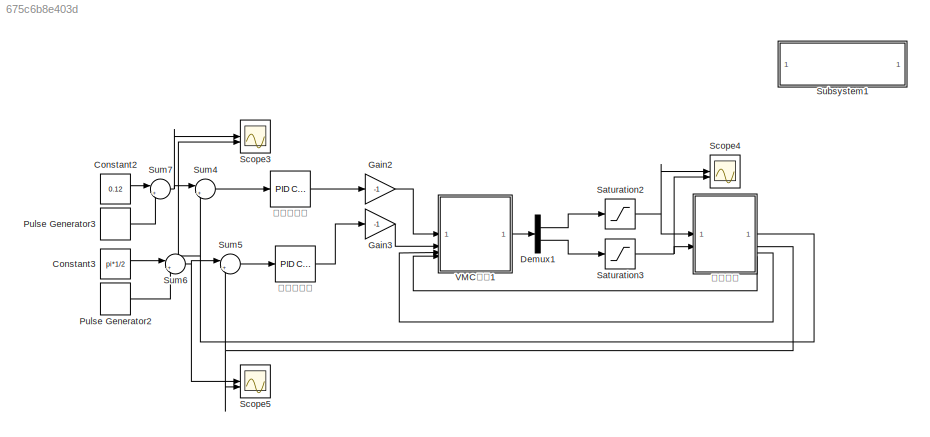
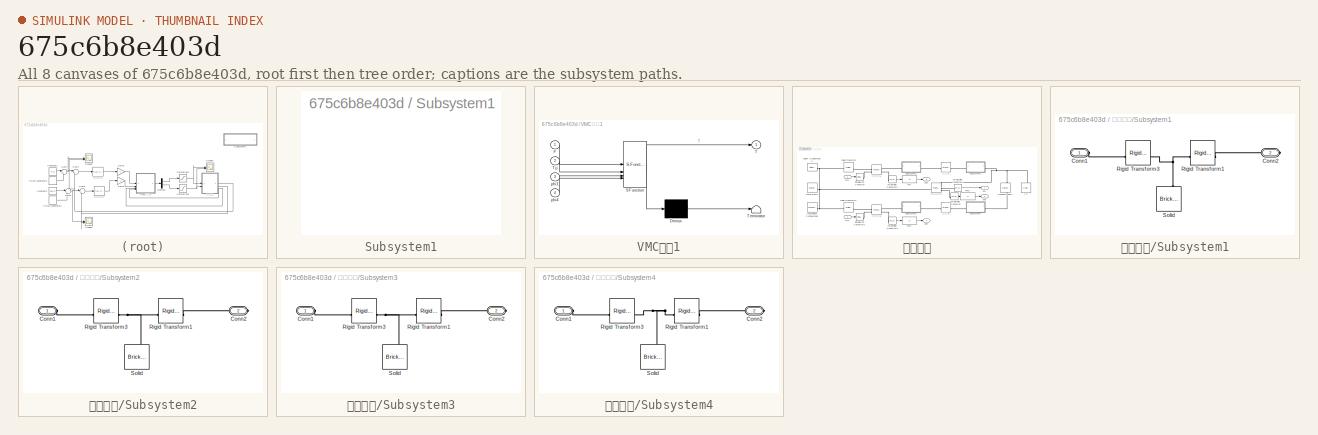
[diagram: thumbnail index - all 8 canvases of the model, root first then tree order]
MODEL slx_675c6b8e403d
KIND model
CONFIG AbsTol = auto
CONFIG EnableMultiTasking = off
CONFIG FixedStep = auto
CONFIG MaxStep = auto
CONFIG MinStep = auto
CONFIG RelTol = 1e-3
CONFIG SampleTimeConstraint = Unconstrained
CONFIG SolverName = VariableStepAuto
CONFIG StartTime = 0.0
CONFIG StopTime = 10.0
BLOCK [Constant] Constant2
  Value = 0.12
BLOCK [Constant] Constant3
  Value = pi*1/2
BLOCK [Demux] Demux1
  Outputs = 2
BLOCK [Gain] Gain2
  Gain = -1
BLOCK [Gain] Gain3
  Gain = -1
BLOCK [DiscretePulseGenerator] Pulse Generator2
  Amplitude = 0
  PulseType = Time based
  PulseWidth = 50
BLOCK [DiscretePulseGenerator] Pulse Generator3
  Amplitude = 0.205
  PulseType = Time based
  PulseWidth = 50
BLOCK [Saturate] Saturation2
  LowerLimit = -1.5
  UpperLimit = 1.5
BLOCK [Saturate] Saturation3
  LowerLimit = -1.5
  UpperLimit = 1.5
BLOCK [Scope] Scope3
  Floating = off
  NumInputPorts = 2
  ScopeSpecificationString = Simulink.scopes.TimeScopeBlockCfg('CurrentConfiguration', extmgr.ConfigurationSet(extmgr.Configuration('Core','General UI',true,'FigureColor',[1 1 1]),extmgr.Configuration('Core','Source UI',true),extmgr.Configuration('Sources','WiredSimulink',true,'DataLoggingVariableName','ScopeData1'),extmgr.Configuration('Visuals','Time Domain',true,'SerializedDisplays',{struct('MinYLimReal','0.09392','MaxYLim...<+1647ch>
BLOCK [Scope] Scope4
  Floating = off
  NumInputPorts = 2
  ScopeSpecificationString = Simulink.scopes.TimeScopeBlockCfg('CurrentConfiguration', extmgr.ConfigurationSet(extmgr.Configuration('Core','General UI',true),extmgr.Configuration('Core','Source UI',true),extmgr.Configuration('Sources','WiredSimulink',true,'DataLoggingVariableName','ScopeData2'),extmgr.Configuration('Visuals','Time Domain',true,'SerializedDisplays',{struct('MinYLimReal','-1.875','MaxYLimReal','1.875','YLabelRe...<+1427ch>
BLOCK [Scope] Scope5
  Floating = off
  NumInputPorts = 2
  ScopeSpecificationString = Simulink.scopes.TimeScopeBlockCfg('CurrentConfiguration', extmgr.ConfigurationSet(extmgr.Configuration('Core','General UI',true,'FigureColor',[1 1 1]),extmgr.Configuration('Core','Source UI',true),extmgr.Configuration('Sources','WiredSimulink',true,'DataLoggingVariableName','ScopeData3'),extmgr.Configuration('Visuals','Time Domain',true,'SerializedDisplays',{struct('MinYLimReal','0.31839','MaxYLim...<+1698ch>
BLOCK [SubSystem] Subsystem1
  OpenFcn = open_system('sm_lib')
  ShowPortLabels = none
BLOCK [Sum] Sum4
  Inputs = |+-
BLOCK [Sum] Sum5
  Inputs = |+-
BLOCK [Sum] Sum6
  Inputs = |++
BLOCK [Sum] Sum7
  Inputs = |++
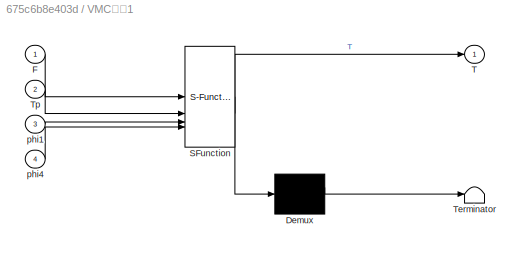
BLOCK [SubSystem] VMC解算1
  ErrorFcn = Stateflow.Translate.translate
  PermitHierarchicalResolution = ExplicitOnly
  SFBlockType = MATLAB Function
  TreatAsAtomicUnit = on
BLOCK [Demux] VMC解算1/ Demux 
  Outputs = 1
BLOCK [S-Function] VMC解算1/ SFunction 
  EnableBusSupport = on
  FunctionName = sf_sfun
  PortCounts = [4 2]
  SFcnIsStateOwnerBlock = off
  SFunctionDeploymentMode = off
  Tag = Stateflow S-Function 1
BLOCK [Terminator] VMC解算1/ Terminator 
BLOCK [Inport] VMC解算1/F
BLOCK [Outport] VMC解算1/T
  VectorParamsAs1DForOutWhenUnconnected = off
BLOCK [Inport] VMC解算1/Tp
  Port = 2
BLOCK [Inport] VMC解算1/phi1
  Port = 3
BLOCK [Inport] VMC解算1/phi4
  Port = 4
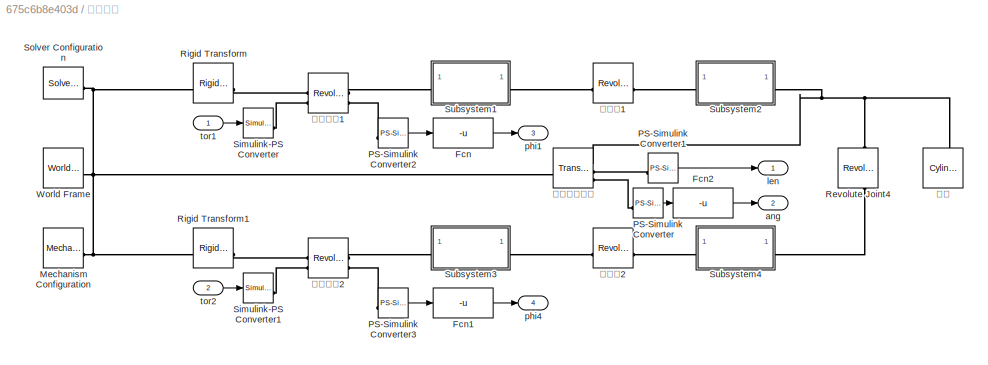
BLOCK [SubSystem] 物理模型
BLOCK [Fcn] 物理模型/Fcn
  Expr = -u
BLOCK [Fcn] 物理模型/Fcn1
  Expr = -u
BLOCK [Fcn] 物理模型/Fcn2
  Expr = -u
BLOCK [Reference] 物理模型/Mechanism Configuration  REF=sm_lib/Utilities/Mechanism
Configuration
  SourceBlock = sm_lib/Utilities/Mechanism\nConfiguration
  SourceType = Mechanism\nConfiguration
BLOCK [Reference] 物理模型/PS-Simulink Converter  REF=nesl_utility/PS-Simulink
Converter
  SourceBlock = nesl_utility/PS-Simulink\nConverter
  SourceType = PS-Simulink\nConverter
BLOCK [Reference] 物理模型/PS-Simulink Converter1  REF=nesl_utility/PS-Simulink
Converter
  SourceBlock = nesl_utility/PS-Simulink\nConverter
  SourceType = PS-Simulink\nConverter
BLOCK [Reference] 物理模型/PS-Simulink Converter2  REF=nesl_utility/PS-Simulink
Converter
  SourceBlock = nesl_utility/PS-Simulink\nConverter
  SourceType = PS-Simulink\nConverter
BLOCK [Reference] 物理模型/PS-Simulink Converter3  REF=nesl_utility/PS-Simulink
Converter
  SourceBlock = nesl_utility/PS-Simulink\nConverter
  SourceType = PS-Simulink\nConverter
BLOCK [Reference] 物理模型/Revolute Joint4  REF=sm_lib/Joints/Revolute Joint
  NameLocation = right
  SourceBlock = sm_lib/Joints/Revolute Joint
  SourceType = Revolute Joint
BLOCK [Reference] 物理模型/Rigid Transform  REF=sm_lib/Frames and
Transforms/Rigid
Transform
  SourceBlock = sm_lib/Frames and\nTransforms/Rigid\nTransform
  SourceType = Rigid\nTransform
BLOCK [Reference] 物理模型/Rigid Transform1  REF=sm_lib/Frames and
Transforms/Rigid
Transform
  SourceBlock = sm_lib/Frames and\nTransforms/Rigid\nTransform
  SourceType = Rigid\nTransform
BLOCK [Reference] 物理模型/Simulink-PS Converter  REF=nesl_utility/Simulink-PS
Converter
  SourceBlock = nesl_utility/Simulink-PS\nConverter
  SourceType = Simulink-PS\nConverter
BLOCK [Reference] 物理模型/Simulink-PS Converter1  REF=nesl_utility/Simulink-PS
Converter
  SourceBlock = nesl_utility/Simulink-PS\nConverter
  SourceType = Simulink-PS\nConverter
BLOCK [Reference] 物理模型/Solver Configuration  REF=nesl_utility/Solver
Configuration
  SourceBlock = nesl_utility/Solver\nConfiguration
  SourceType = Solver\nConfiguration
BLOCK [SubSystem] 物理模型/Subsystem1
BLOCK [PMIOPort] 物理模型/Subsystem1/Conn1
  Side = Left
BLOCK [PMIOPort] 物理模型/Subsystem1/Conn2
  Port = 2
  Side = Right
BLOCK [Reference] 物理模型/Subsystem1/Rigid Transform1  REF=sm_lib/Frames and
Transforms/Rigid
Transform
  SourceBlock = sm_lib/Frames and\nTransforms/Rigid\nTransform
  SourceType = Rigid\nTransform
BLOCK [Reference] 物理模型/Subsystem1/Rigid Transform3  REF=sm_lib/Frames and
Transforms/Rigid
Transform
  SourceBlock = sm_lib/Frames and\nTransforms/Rigid\nTransform
  SourceType = Rigid\nTransform
BLOCK [Reference] 物理模型/Subsystem1/Solid  REF=sm_lib/Body Elements/Brick Solid
  NameLocation = right
  SourceBlock = sm_lib/Body Elements/Brick Solid
  SourceType = Brick Solid
BLOCK [SubSystem] 物理模型/Subsystem2
BLOCK [PMIOPort] 物理模型/Subsystem2/Conn1
  Side = Left
BLOCK [PMIOPort] 物理模型/Subsystem2/Conn2
  Port = 2
  Side = Right
BLOCK [Reference] 物理模型/Subsystem2/Rigid Transform1  REF=sm_lib/Frames and
Transforms/Rigid
Transform
  SourceBlock = sm_lib/Frames and\nTransforms/Rigid\nTransform
  SourceType = Rigid\nTransform
BLOCK [Reference] 物理模型/Subsystem2/Rigid Transform3  REF=sm_lib/Frames and
Transforms/Rigid
Transform
  SourceBlock = sm_lib/Frames and\nTransforms/Rigid\nTransform
  SourceType = Rigid\nTransform
BLOCK [Reference] 物理模型/Subsystem2/Solid  REF=sm_lib/Body Elements/Brick Solid
  NameLocation = right
  SourceBlock = sm_lib/Body Elements/Brick Solid
  SourceType = Brick Solid
BLOCK [SubSystem] 物理模型/Subsystem3
BLOCK [PMIOPort] 物理模型/Subsystem3/Conn1
  Side = Left
BLOCK [PMIOPort] 物理模型/Subsystem3/Conn2
  Port = 2
  Side = Right
BLOCK [Reference] 物理模型/Subsystem3/Rigid Transform1  REF=sm_lib/Frames and
Transforms/Rigid
Transform
  SourceBlock = sm_lib/Frames and\nTransforms/Rigid\nTransform
  SourceType = Rigid\nTransform
BLOCK [Reference] 物理模型/Subsystem3/Rigid Transform3  REF=sm_lib/Frames and
Transforms/Rigid
Transform
  SourceBlock = sm_lib/Frames and\nTransforms/Rigid\nTransform
  SourceType = Rigid\nTransform
BLOCK [Reference] 物理模型/Subsystem3/Solid  REF=sm_lib/Body Elements/Brick Solid
  NameLocation = right
  SourceBlock = sm_lib/Body Elements/Brick Solid
  SourceType = Brick Solid
BLOCK [SubSystem] 物理模型/Subsystem4
BLOCK [PMIOPort] 物理模型/Subsystem4/Conn1
  Side = Left
BLOCK [PMIOPort] 物理模型/Subsystem4/Conn2
  Port = 2
  Side = Right
BLOCK [Reference] 物理模型/Subsystem4/Rigid Transform1  REF=sm_lib/Frames and
Transforms/Rigid
Transform
  SourceBlock = sm_lib/Frames and\nTransforms/Rigid\nTransform
  SourceType = Rigid\nTransform
BLOCK [Reference] 物理模型/Subsystem4/Rigid Transform3  REF=sm_lib/Frames and
Transforms/Rigid
Transform
  SourceBlock = sm_lib/Frames and\nTransforms/Rigid\nTransform
  SourceType = Rigid\nTransform
BLOCK [Reference] 物理模型/Subsystem4/Solid  REF=sm_lib/Body Elements/Brick Solid
  NameLocation = right
  SourceBlock = sm_lib/Body Elements/Brick Solid
  SourceType = Brick Solid
BLOCK [Reference] 物理模型/World Frame  REF=sm_lib/Frames and
Transforms/World Frame
  SourceBlock = sm_lib/Frames and\nTransforms/World Frame
  SourceType = World Frame
BLOCK [Outport] 物理模型/ang
  Port = 2
  VectorParamsAs1DForOutWhenUnconnected = off
BLOCK [Outport] 物理模型/len
  VectorParamsAs1DForOutWhenUnconnected = off
BLOCK [Outport] 物理模型/phi1
  Port = 3
  VectorParamsAs1DForOutWhenUnconnected = off
BLOCK [Outport] 物理模型/phi4
  Port = 4
  VectorParamsAs1DForOutWhenUnconnected = off
BLOCK [Inport] 物理模型/tor1
BLOCK [Inport] 物理模型/tor2
  Port = 2
BLOCK [Reference] 物理模型/关节电机1  REF=sm_lib/Joints/Revolute Joint
  SourceBlock = sm_lib/Joints/Revolute Joint
  SourceType = Revolute Joint
BLOCK [Reference] 物理模型/关节电机2  REF=sm_lib/Joints/Revolute Joint
  SourceBlock = sm_lib/Joints/Revolute Joint
  SourceType = Revolute Joint
BLOCK [Reference] 物理模型/膝关节1  REF=sm_lib/Joints/Revolute Joint
  SourceBlock = sm_lib/Joints/Revolute Joint
  SourceType = Revolute Joint
BLOCK [Reference] 物理模型/膝关节2  REF=sm_lib/Joints/Revolute Joint
  SourceBlock = sm_lib/Joints/Revolute Joint
  SourceType = Revolute Joint
BLOCK [Reference] 物理模型/虚拟腿传感器  REF=sm_lib/Frames and
Transforms/Transform
Sensor
  SourceBlock = sm_lib/Frames and\nTransforms/Transform\nSensor
  SourceType = Transform\nSensor
BLOCK [Reference] 物理模型/车轮  REF=sm_lib/Body Elements/Cylindrical Solid
  SourceBlock = sm_lib/Body Elements/Cylindrical Solid
  SourceType = Cylindrical Solid
BLOCK [Reference] 腿长控制器  REF=slpidlib/PID Controller
  SourceBlock = slpidlib/PID Controller
  SourceType = PID 1dof
BLOCK [Reference] 角度控制器  REF=slpidlib/PID Controller
  SourceBlock = slpidlib/PID Controller
  SourceType = PID 1dof
LINE Constant2:1 -> Sum7:1
LINE Constant3:1 -> Sum6:1
LINE Demux1:1 -> Saturation2:1
LINE Demux1:2 -> Saturation3:1
LINE Gain2:1 -> VMC解算1:1
LINE Gain3:1 -> VMC解算1:2
LINE Pulse Generator2:1 -> Sum6:2
LINE Pulse Generator3:1 -> Sum7:2
NET Saturation2:1 -> Scope4:1, 物理模型:1
NET Saturation3:1 -> Scope4:2, 物理模型:2
LINE Sum4:1 -> 腿长控制器:1
LINE Sum5:1 -> 角度控制器:1
NET Sum6:1 -> Scope5:1, Sum5:1
NET Sum7:1 -> Scope3:1, Sum4:1
LINE VMC解算1:1 -> Demux1:1
LINE 物理模型/Fcn1:1 -> 物理模型/phi4:1
LINE 物理模型/Fcn2:1 -> 物理模型/ang:1
LINE 物理模型/Fcn:1 -> 物理模型/phi1:1
LINE 物理模型/PS-Simulink Converter1:1 -> 物理模型/len:1
LINE 物理模型/PS-Simulink Converter2:1 -> 物理模型/Fcn:1
LINE 物理模型/PS-Simulink Converter3:1 -> 物理模型/Fcn1:1
LINE 物理模型/PS-Simulink Converter:1 -> 物理模型/Fcn2:1
LINE 物理模型/tor1:1 -> 物理模型/Simulink-PS Converter:1
LINE 物理模型/tor2:1 -> 物理模型/Simulink-PS Converter1:1
NET 物理模型:1 -> Scope3:2, Sum4:2
NET 物理模型:2 -> Scope5:2, Sum5:2
LINE 物理模型:3 -> VMC解算1:3
LINE 物理模型:4 -> VMC解算1:4
LINE 腿长控制器:1 -> Gain2:1
LINE 角度控制器:1 -> Gain3:1
PNET net1: 物理模型/Mechanism Configuration:RConn1 -- 物理模型/Rigid Transform1:LConn1 -- 物理模型/Rigid Transform:LConn1 -- 物理模型/Solver Configuration:RConn1 -- 物理模型/World Frame:RConn1 -- 物理模型/虚拟腿传感器:LConn1
PLINE 物理模型/PS-Simulink Converter1:LConn1 -- 物理模型/虚拟腿传感器:RConn2
PLINE 物理模型/PS-Simulink Converter2:LConn1 -- 物理模型/关节电机1:RConn2
PLINE 物理模型/PS-Simulink Converter3:LConn1 -- 物理模型/关节电机2:RConn2
PLINE 物理模型/PS-Simulink Converter:LConn1 -- 物理模型/虚拟腿传感器:RConn3
PLINE 物理模型/Revolute Joint4:LConn1 -- 物理模型/Subsystem4:RConn1
PNET net2: 物理模型/Revolute Joint4:RConn1 -- 物理模型/Subsystem2:RConn1 -- 物理模型/虚拟腿传感器:RConn1 -- 物理模型/车轮:RConn1
PLINE 物理模型/Rigid Transform1:RConn1 -- 物理模型/关节电机2:LConn1
PLINE 物理模型/Rigid Transform:RConn1 -- 物理模型/关节电机1:LConn1
PLINE 物理模型/Simulink-PS Converter1:RConn1 -- 物理模型/关节电机2:LConn2
PLINE 物理模型/Simulink-PS Converter:RConn1 -- 物理模型/关节电机1:LConn2
PLINE 物理模型/Subsystem1/Conn1:RConn1 -- 物理模型/Subsystem1/Rigid Transform3:LConn1
PLINE 物理模型/Subsystem1/Conn2:RConn1 -- 物理模型/Subsystem1/Rigid Transform1:RConn1
PNET net3: 物理模型/Subsystem1/Rigid Transform1:LConn1 -- 物理模型/Subsystem1/Rigid Transform3:RConn1 -- 物理模型/Subsystem1/Solid:RConn1
PLINE 物理模型/Subsystem1:LConn1 -- 物理模型/关节电机1:RConn1
PLINE 物理模型/Subsystem1:RConn1 -- 物理模型/膝关节1:LConn1
PLINE 物理模型/Subsystem2/Conn1:RConn1 -- 物理模型/Subsystem2/Rigid Transform3:LConn1
PLINE 物理模型/Subsystem2/Conn2:RConn1 -- 物理模型/Subsystem2/Rigid Transform1:RConn1
PNET net4: 物理模型/Subsystem2/Rigid Transform1:LConn1 -- 物理模型/Subsystem2/Rigid Transform3:RConn1 -- 物理模型/Subsystem2/Solid:RConn1
PLINE 物理模型/Subsystem2:LConn1 -- 物理模型/膝关节1:RConn1
PLINE 物理模型/Subsystem3/Conn1:RConn1 -- 物理模型/Subsystem3/Rigid Transform3:LConn1
PLINE 物理模型/Subsystem3/Conn2:RConn1 -- 物理模型/Subsystem3/Rigid Transform1:RConn1
PNET net5: 物理模型/Subsystem3/Rigid Transform1:LConn1 -- 物理模型/Subsystem3/Rigid Transform3:RConn1 -- 物理模型/Subsystem3/Solid:RConn1
PLINE 物理模型/Subsystem3:LConn1 -- 物理模型/关节电机2:RConn1
PLINE 物理模型/Subsystem3:RConn1 -- 物理模型/膝关节2:LConn1
PLINE 物理模型/Subsystem4/Conn1:RConn1 -- 物理模型/Subsystem4/Rigid Transform3:LConn1
PLINE 物理模型/Subsystem4/Conn2:RConn1 -- 物理模型/Subsystem4/Rigid Transform1:RConn1
PNET net6: 物理模型/Subsystem4/Rigid Transform1:LConn1 -- 物理模型/Subsystem4/Rigid Transform3:RConn1 -- 物理模型/Subsystem4/Solid:RConn1
PLINE 物理模型/Subsystem4:LConn1 -- 物理模型/膝关节2:RConn1
note: NET lines group one-source signal fan-out (src -> all destinations, sorted); 1:1 wires keep LINE; PNET lines group multi-terminal physical nets as a canonical sorted terminal list (undirected conserving connections); 2-terminal nets keep the pairwise PLINE form
CHART VMC解算1 states=1 transitions=1
  STATE_LABEL 'eML_blk_kernel()'
  STATE_LABEL 'SCRIPT:\nfunction T = fcn(F,Tp,phi1,phi4)\n    T=leg_conv_1(F,Tp,phi1,phi4);\n'
CHART  states=0 transitions=0
